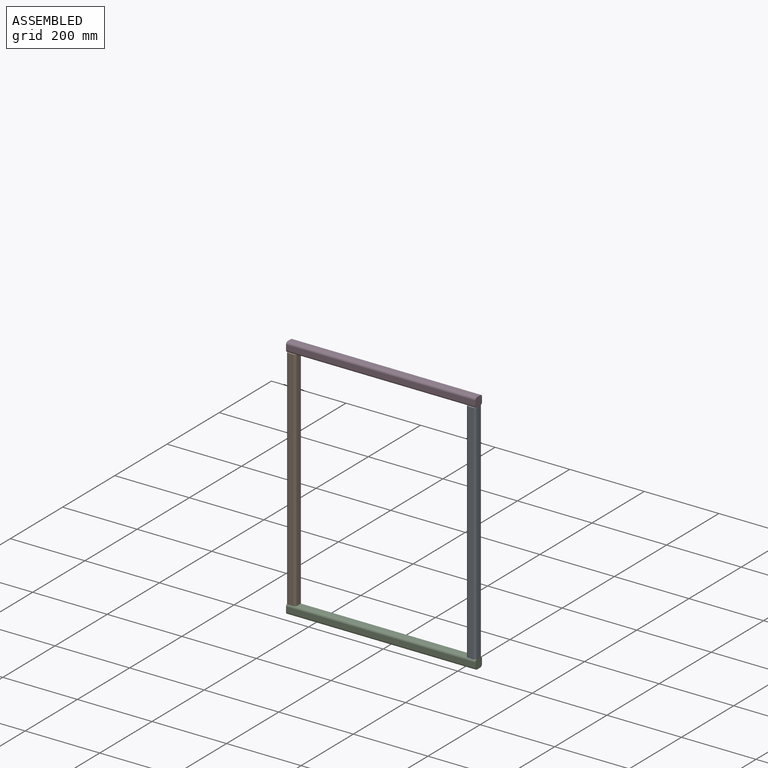
[diagram: assembled view]
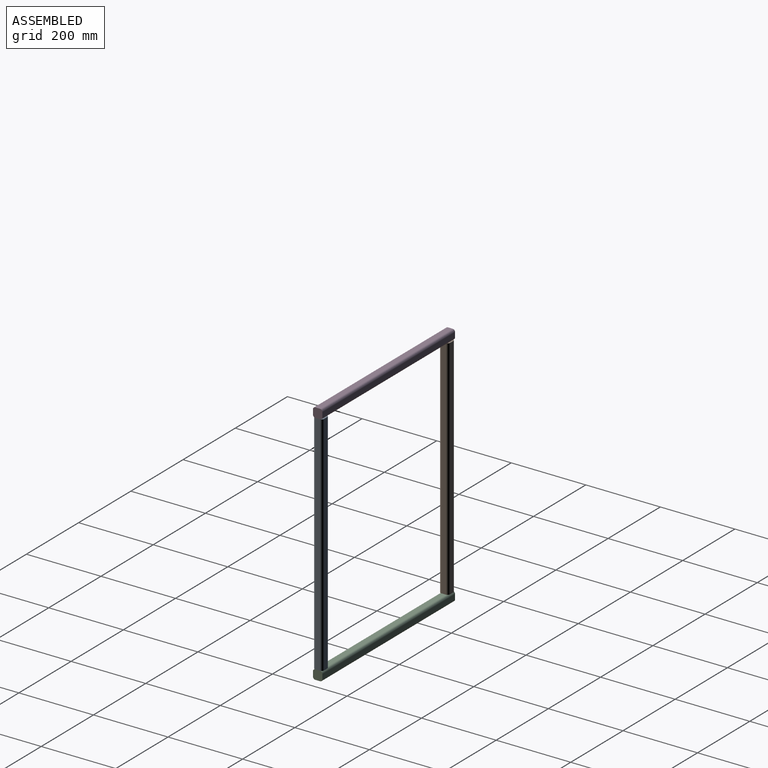
[diagram: assembled view, second angle]
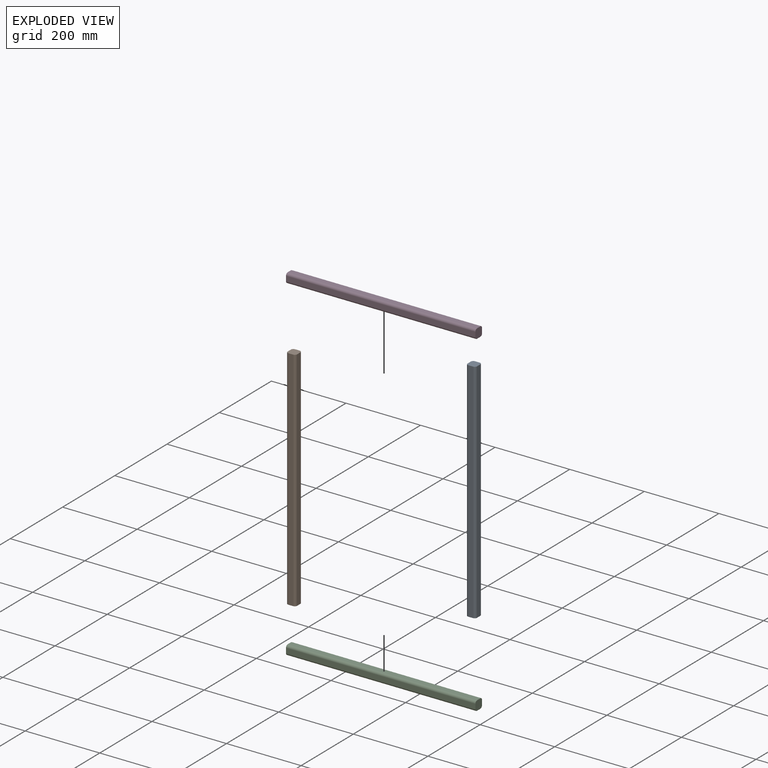
[diagram: exploded view]
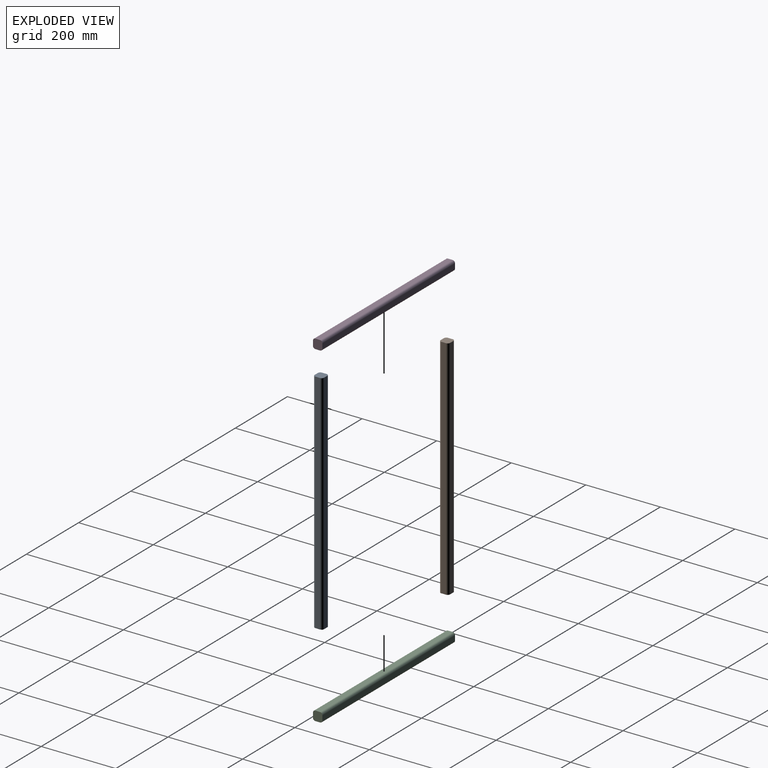
[diagram: exploded view, second angle]
ASSEMBLY  parts=4 mates=3
PART A: 10 faces, bbox 25.4x25.4x609.6 mm
  f0: plane 609.6x12.7mm, normal (0,-1,0), area 7741.9mm2, adj f1,f7,f8,f9
  f1: cylinder r=6.35mm len=609.6mm, axis (0,0,-1), area 6080.5mm2, adj f0,f2,f8,f9
  f2: plane 609.6x12.7mm, normal (1,0,0), area 7741.9mm2, adj f1,f3,f8,f9
  f3: cylinder r=6.35mm len=609.6mm, axis (0,0,-1), area 6080.5mm2, adj f2,f4,f8,f9
  f4: plane 609.6x12.7mm, normal (0,1,0), area 7741.9mm2, adj f3,f5,f8,f9
  f5: cylinder r=6.35mm len=609.6mm, axis (0,0,-1), area 6080.5mm2, adj f4,f6,f8,f9
  f6: plane 609.6x12.7mm, normal (-1,0,0), area 7741.9mm2, adj f5,f7,f8,f9
  f7: cylinder r=6.35mm len=609.6mm, axis (0,0,-1), area 6080.5mm2, adj f0,f6,f8,f9
  f8: plane 25.4x25.4mm, normal (0,0,1), area 610.5mm2, adj f0,f1,f2,f3,f4,f5,f6,f7
  f9: plane 25.4x25.4mm, normal (0,0,-1), area 610.5mm2, adj f0,f1,f2,f3,f4,f5,f6,f7
PART B: same geometry as A
PART C: 10 faces, bbox 25.4x25.4x508 mm
  f0: plane 508x12.7mm, normal (0,-1,0), area 6451.6mm2, adj f1,f7,f8,f9
  f1: cylinder r=6.35mm len=508mm, axis (0,0,-1), area 5067.1mm2, adj f0,f2,f8,f9
  f2: plane 508x12.7mm, normal (1,0,0), area 6451.6mm2, adj f1,f3,f8,f9
  f3: cylinder r=6.35mm len=508mm, axis (0,0,-1), area 5067.1mm2, adj f2,f4,f8,f9
  f4: plane 508x12.7mm, normal (0,1,0), area 6451.6mm2, adj f3,f5,f8,f9
  f5: cylinder r=6.35mm len=508mm, axis (0,0,-1), area 5067.1mm2, adj f4,f6,f8,f9
  f6: plane 508x12.7mm, normal (-1,0,0), area 6451.6mm2, adj f5,f7,f8,f9
  f7: cylinder r=6.35mm len=508mm, axis (0,0,-1), area 5067.1mm2, adj f0,f6,f8,f9
  f8: plane 25.4x25.4mm, normal (0,0,1), area 610.5mm2, adj f0,f1,f2,f3,f4,f5,f6,f7
  f9: plane 25.4x25.4mm, normal (0,0,-1), area 610.5mm2, adj f0,f1,f2,f3,f4,f5,f6,f7
PART D: same geometry as C
PLACE A rot(axis=(0,-0.89,-0.45),0deg) t=(355.94,239.5,-362.33)mm
PLACE B rot(axis=(0,-0.89,-0.45),0deg) t=(-126.66,239.5,-362.33)mm
PLACE C rot(axis=(0,1,0),90deg) t=(-139.36,239.5,-375.03)mm
PLACE D rot(axis=(0,1,0),90deg) t=(-139.36,239.5,259.97)mm
MATE fastened B.f8 <-> D.f2  axis (0,0,1) through (-139.36,239.5,247.27)mm
MATE fastened A.f8 <-> D.f2  axis (0,0,1) through (368.64,239.5,247.27)mm
MATE fastened C.f6 <-> B.f9  axis (0,0,1) through (-139.36,239.5,-362.33)mm
